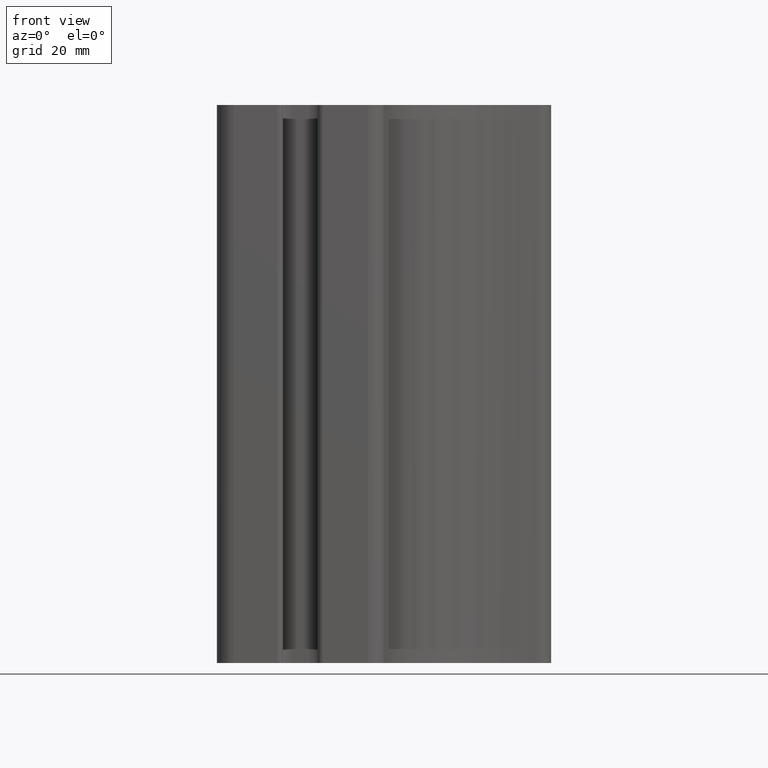
[diagram: clean part render]
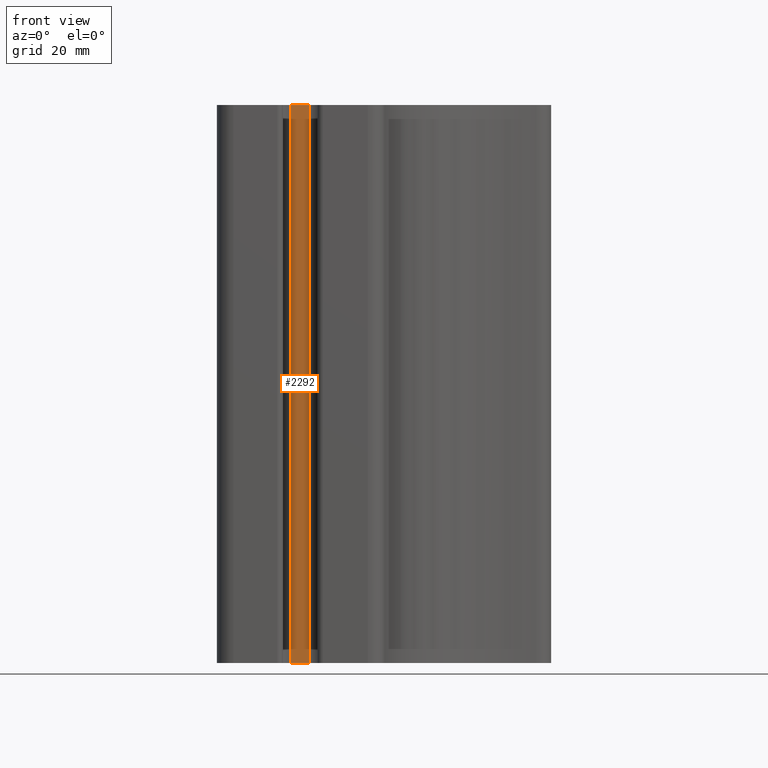
[diagram: same view with one face highlighted and labeled with its STEP entity id]
A machine part, front view. The second image highlights one B-rep face of the part: STEP entity #2292.
In plain terms, the highlighted planar face has unit normal (0, -1, 0).
Its self-contained STEP definition (entity closure, byte-faithful):
#354=FACE_OUTER_BOUND('',#475,.T.);
#475=EDGE_LOOP('',(#1820,#1821,#1822,#1823));
#654=LINE('',#3865,#843);
#655=LINE('',#3868,#844);
#656=LINE('',#3870,#845);
#657=LINE('',#3871,#846);
#843=VECTOR('',#3163,100.);
#844=VECTOR('',#3166,3.20642458424473);
#845=VECTOR('',#3167,3.20642458424473);
#846=VECTOR('',#3168,100.);
#1073=VERTEX_POINT('',#3861);
#1074=VERTEX_POINT('',#3863);
#1075=VERTEX_POINT('',#3867);
#1076=VERTEX_POINT('',#3869);
#1390=EDGE_CURVE('',#1073,#1074,#654,.T.);
#1391=EDGE_CURVE('',#1075,#1073,#655,.T.);
#1392=EDGE_CURVE('',#1076,#1074,#656,.T.);
#1393=EDGE_CURVE('',#1075,#1076,#657,.T.);
#1820=ORIENTED_EDGE('',*,*,#1391,.T.);
#1821=ORIENTED_EDGE('',*,*,#1390,.T.);
#1822=ORIENTED_EDGE('',*,*,#1392,.F.);
#1823=ORIENTED_EDGE('',*,*,#1393,.F.);
#2189=PLANE('',#2538);
#2292=ADVANCED_FACE('',(#354),#2189,.T.);
#2538=AXIS2_PLACEMENT_3D('',#3866,#3164,#3165);
#3163=DIRECTION('',(0.,0.,1.));
#3164=DIRECTION('center_axis',(0.,-1.,0.));
#3165=DIRECTION('ref_axis',(1.,0.,0.));
#3166=DIRECTION('',(1.,0.,0.));
#3167=DIRECTION('',(1.,0.,0.));
#3168=DIRECTION('',(0.,0.,1.));
#3861=CARTESIAN_POINT('',(-11.5783630836302,-22.0700277938015,0.));
#3863=CARTESIAN_POINT('',(-11.5783630836302,-22.0700277938015,100.));
#3865=CARTESIAN_POINT('',(-11.5783630836302,-22.0700277938015,0.));
#3866=CARTESIAN_POINT('Origin',(-14.784787667875,-22.0700277938015,0.));
#3867=CARTESIAN_POINT('',(-14.784787667875,-22.0700277938015,0.));
#3868=CARTESIAN_POINT('',(-14.784787667875,-22.0700277938015,0.));
#3869=CARTESIAN_POINT('',(-14.784787667875,-22.0700277938015,100.));
#3870=CARTESIAN_POINT('',(-14.784787667875,-22.0700277938015,100.));
#3871=CARTESIAN_POINT('',(-14.784787667875,-22.0700277938015,0.));